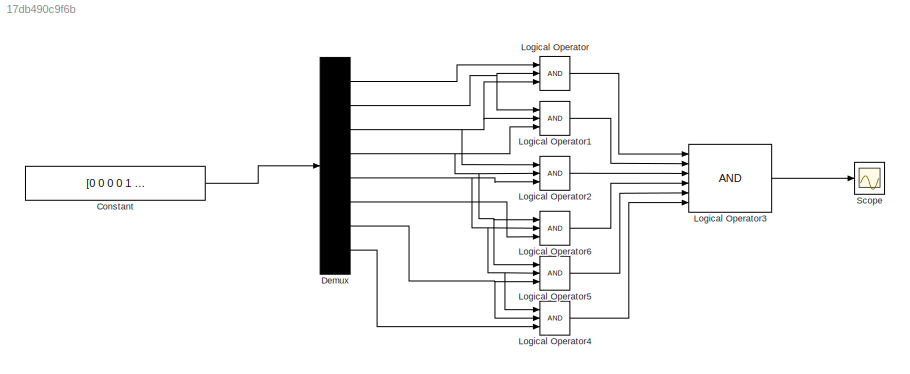
MODEL slx_17db490c9f6b
KIND model
CONFIG AbsTol = auto
CONFIG EnableMultiTasking = off
CONFIG FixedStep = auto
CONFIG MaxStep = auto
CONFIG MinStep = auto
CONFIG RelTol = 1e-3
CONFIG SampleTimeConstraint = Unconstrained
CONFIG SolverName = VariableStepAuto
CONFIG StartTime = 0.0
CONFIG StopTime = 1
BLOCK [Constant] Constant
  Value = [0 0 0 0 1 1 1 1]
BLOCK [Demux] Demux
  Outputs = 8
BLOCK [Logic] Logical Operator
  AllPortsSameDT = off
  IconShape = distinctive
  Inputs = 3
  OutDataTypeStr = boolean
BLOCK [Logic] Logical Operator1
  AllPortsSameDT = off
  IconShape = distinctive
  Inputs = 3
  OutDataTypeStr = boolean
BLOCK [Logic] Logical Operator2
  AllPortsSameDT = off
  IconShape = distinctive
  Inputs = 3
  OutDataTypeStr = boolean
BLOCK [Logic] Logical Operator3
  AllPortsSameDT = off
  IconShape = distinctive
  Inputs = 6
  OutDataTypeStr = boolean
BLOCK [Logic] Logical Operator4
  AllPortsSameDT = off
  IconShape = distinctive
  Inputs = 3
  OutDataTypeStr = boolean
BLOCK [Logic] Logical Operator5
  AllPortsSameDT = off
  IconShape = distinctive
  Inputs = 3
  OutDataTypeStr = boolean
BLOCK [Logic] Logical Operator6
  AllPortsSameDT = off
  IconShape = distinctive
  Inputs = 3
  OutDataTypeStr = boolean
BLOCK [Scope] Scope
  ActiveDisplayYMaximum = 1
  ActiveDisplayYMinimum = -1
  Floating = off
  GraphicalSettings = {"Style":{"BackgroundColor":[0.12941176470588237,0.12941176470588237,0.12941176470588237],"AxesColor":[0.07058823529411765,0.07058823529411765,0.07058823529411765],"LabelsColor":[0.8509803921568627,0.8509803921568627,0.8509803921568627],"PreserveColors":false,"Visible":[true],"LineStyle":["-"],"LineWidth":[1.5],"BarWidth":[0.9],"LineColor":["auto"],"LineFaceAlpha":[1],"LineEdgeAlpha":[1],"Marker":...<+1913ch>
  MultipleDisplayCache = [{"MaxYLimMag":1,"MaxYLimReal":1,"MinYLimMag":0,"MinYLimReal":-1,"PlotAsMagnitudePhase":false,"ShowGrid":true,"ShowLegend":false,"Title":"%<SignalLabel>","YLabel":""}]
  NumInputPorts = 1
  ScopeFrameLocation = window
  WasSavedAsWebScope = on
  WindowPosition = [1.000000,49.000000,1536.000000,793.000000,]
LINE Constant:1 -> Demux:1
LINE Demux:1 -> Logical Operator:1
NET Demux:2 -> Logical Operator1:1, Logical Operator:2
NET Demux:3 -> Logical Operator1:2, Logical Operator2:1, Logical Operator:3
NET Demux:4 -> Logical Operator1:3, Logical Operator2:2, Logical Operator5:1, Logical Operator6:1
NET Demux:5 -> Logical Operator2:3, Logical Operator4:1, Logical Operator5:2, Logical Operator6:2
LINE Demux:6 -> Logical Operator6:3
NET Demux:7 -> Logical Operator4:2, Logical Operator5:3
LINE Demux:8 -> Logical Operator4:3
LINE Logical Operator1:1 -> Logical Operator3:2
LINE Logical Operator2:1 -> Logical Operator3:3
LINE Logical Operator3:1 -> Scope:1
LINE Logical Operator4:1 -> Logical Operator3:6
LINE Logical Operator5:1 -> Logical Operator3:5
LINE Logical Operator6:1 -> Logical Operator3:4
LINE Logical Operator:1 -> Logical Operator3:1
note: NET lines group one-source signal fan-out (src -> all destinations, sorted); 1:1 wires keep LINE
